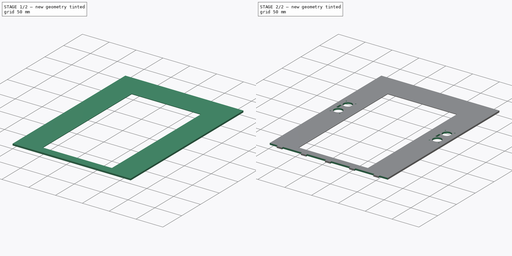
[diagram: build sequence overview — one tinted view per stage of 2, left to right]
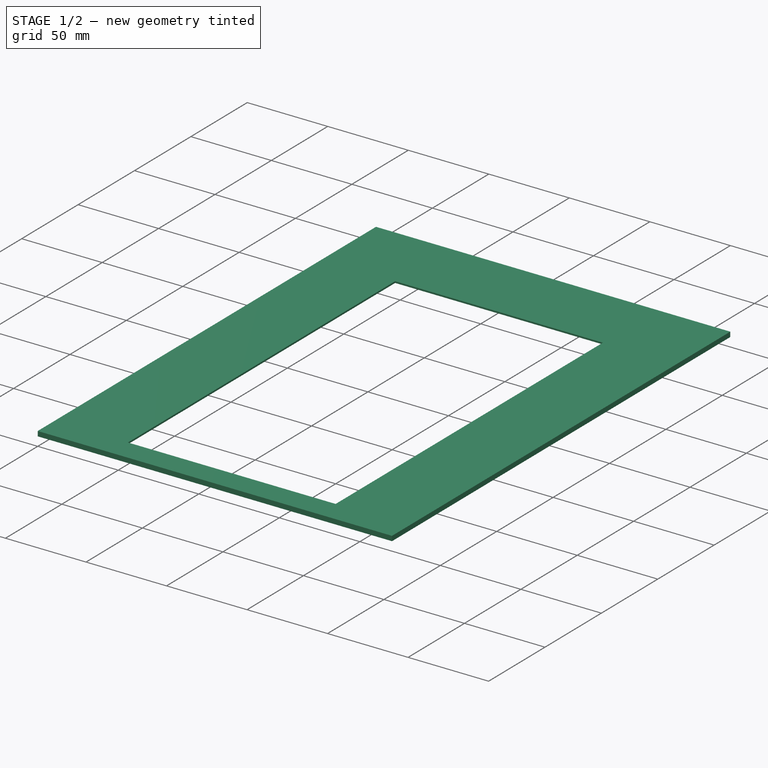
[diagram: stage 1 of 2 — iso view after this stage's code; geometry added in this stage tinted green]
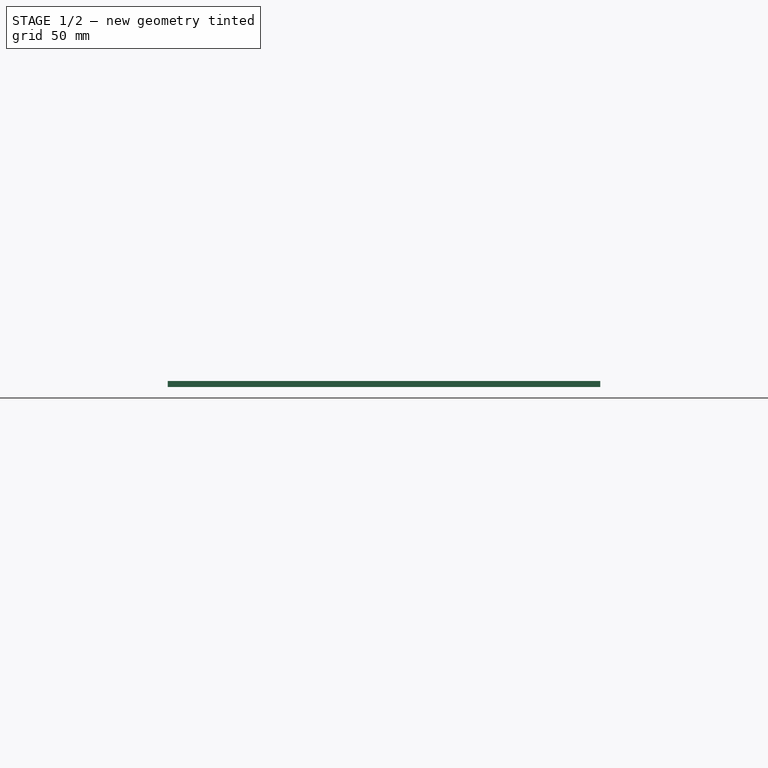
[diagram: stage 1 of 2 — front view after this stage's code; geometry added in this stage tinted green]
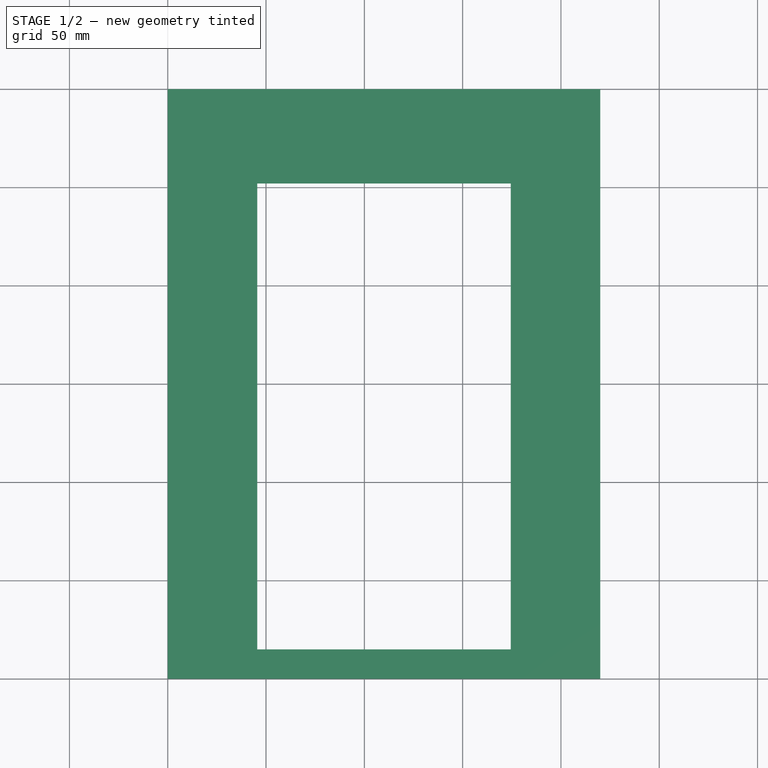
[diagram: stage 1 of 2 — top view after this stage's code; geometry added in this stage tinted green]
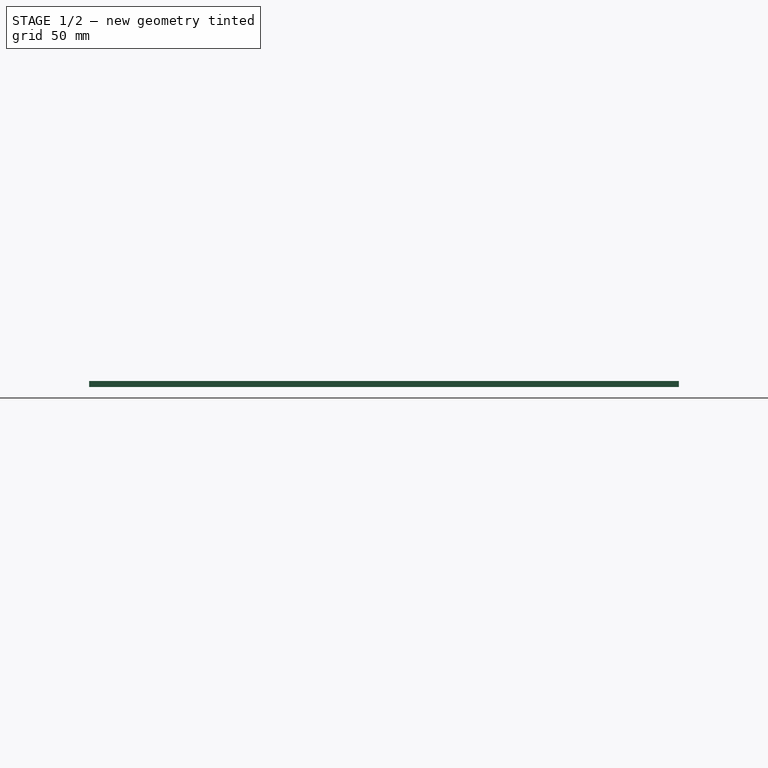
[diagram: stage 1 of 2 — right view after this stage's code; geometry added in this stage tinted green]
FCSTD DOCUMENT  (FreeCAD 0.19R24366 (Git))
Label: mdo-backup
License: All rights reserved
LicenseURL: http://en.wikipedia.org/wiki/All_rights_reserved
objects: Sketcher::SketchObject×4, PartDesign::Pocket×3, PartDesign::Pad×1, PartDesign::Body×1
note: 13 computed .brp shape members not serialized (recipe doc carries the construction recipe); baked Part::Feature solids carry a one-line shape summary decoded from their .brp

FEATURE [Sketcher::SketchObject] Sketch
  FullyConstrained = true
  MapMode = 5
  Support = -> [XY_Plane]
  sketch-geometry (8):
    g0: LineSegment StartX=0 StartY=0 StartZ=0 EndX=220 EndY=0 EndZ=0
    g1: LineSegment StartX=220 StartY=0 StartZ=0 EndX=220 EndY=300 EndZ=0
    g2: LineSegment StartX=220 StartY=300 StartZ=0 EndX=0 EndY=300 EndZ=0
    g3: LineSegment StartX=0 StartY=300 StartZ=0 EndX=0 EndY=0 EndZ=0
    g4: LineSegment StartX=45.5 StartY=252 StartZ=0 EndX=174.5 EndY=252 EndZ=0
    g5: LineSegment StartX=174.5 StartY=252 StartZ=0 EndX=174.5 EndY=15 EndZ=0
    g6: LineSegment StartX=174.5 StartY=15 StartZ=0 EndX=45.5 EndY=15 EndZ=0
    g7: LineSegment StartX=45.5 StartY=15 StartZ=0 EndX=45.5 EndY=252 EndZ=0
  constraints (23):
    c: Coincident(g0,g1)
    c: Coincident(g1,g2)
    c: Coincident(g2,g3)
    c: Coincident(g3,g0)
    c: Horizontal(g0)
    c: Horizontal(g2)
    c: Vertical(g1)
    c: Vertical(g3)
    c: Coincident(g0,g-1)
    c: DistanceX(g0,g0) = 220
    c: DistanceY(g3,g3) = 300
    c: Coincident(g4,g5)
    c: Coincident(g5,g6)
    c: Coincident(g6,g7)
    c: Coincident(g7,g4)
    c: Horizontal(g4)
    c: Horizontal(g6)
    c: Vertical(g5)
    c: Vertical(g7)
    c: DistanceY(g0,g5) = 15
    c: DistanceY(g5,g5) = 237
    c: DistanceX(g6,g6) = 129
    c: DistanceX(g2,g4) = 45.5
FEATURE [PartDesign::Pad] Pad
  Direction = (1,1,1)
  Length = 3
  Length2 = 100
  Profile = -> Sketch
  Type = 0
FEATURE [Sketcher::SketchObject] Sketch001
  FullyConstrained = true
  MapMode = 5
  Placement = pos=(0,0,0) rot=(1,0,0;3.14159rad)
  Support = -> [Pad]
  sketch-geometry (8):
    g0: LineSegment StartX=41.5 StartY=-12 StartZ=0 EndX=184.5 EndY=-12 EndZ=0
    g1: LineSegment StartX=184.5 StartY=-12 StartZ=0 EndX=184.5 EndY=-257 EndZ=0
    g2: LineSegment StartX=184.5 StartY=-257 StartZ=0 EndX=41.5 EndY=-257 EndZ=0
    g3: LineSegment StartX=41.5 StartY=-257 StartZ=0 EndX=41.5 EndY=-12 EndZ=0
    g4: LineSegment StartX=45.5 StartY=-15 StartZ=0 EndX=174.5 EndY=-15 EndZ=0
    g5: LineSegment StartX=174.5 StartY=-15 StartZ=0 EndX=174.5 EndY=-252 EndZ=0
    g6: LineSegment StartX=174.5 StartY=-252 StartZ=0 EndX=45.5 EndY=-252 EndZ=0
    g7: LineSegment StartX=45.5 StartY=-252 StartZ=0 EndX=45.5 EndY=-15 EndZ=0
  constraints (24):
    c: Coincident(g0,g1)
    c: Coincident(g1,g2)
    c: Coincident(g2,g3)
    c: Coincident(g3,g0)
    c: Horizontal(g0)
    c: Horizontal(g2)
    c: Vertical(g1)
    c: Vertical(g3)
    c: Coincident(g4,g5)
    c: Coincident(g5,g6)
    c: Coincident(g6,g7)
    c: Coincident(g7,g4)
    c: Horizontal(g4)
    c: Horizontal(g6)
    c: Vertical(g5)
    c: Vertical(g7)
    c: DistanceX(g4,g4) = 129
    c: DistanceY(g4,g-1) = 15
    c: DistanceY(g5,g5) = 237
    c: DistanceX(g-1,g4) = 45.5
    c: DistanceY(g1,g5) = 5
    c: DistanceY(g4,g0) = 3
    c: DistanceX(g5,g1) = 10
    c: DistanceX(g2,g6) = 4
FEATURE [PartDesign::Pocket] Pocket
  BaseFeature = -> Pad
  Length = 2
  Length2 = 100
  Profile = -> Sketch001
  Type = 0
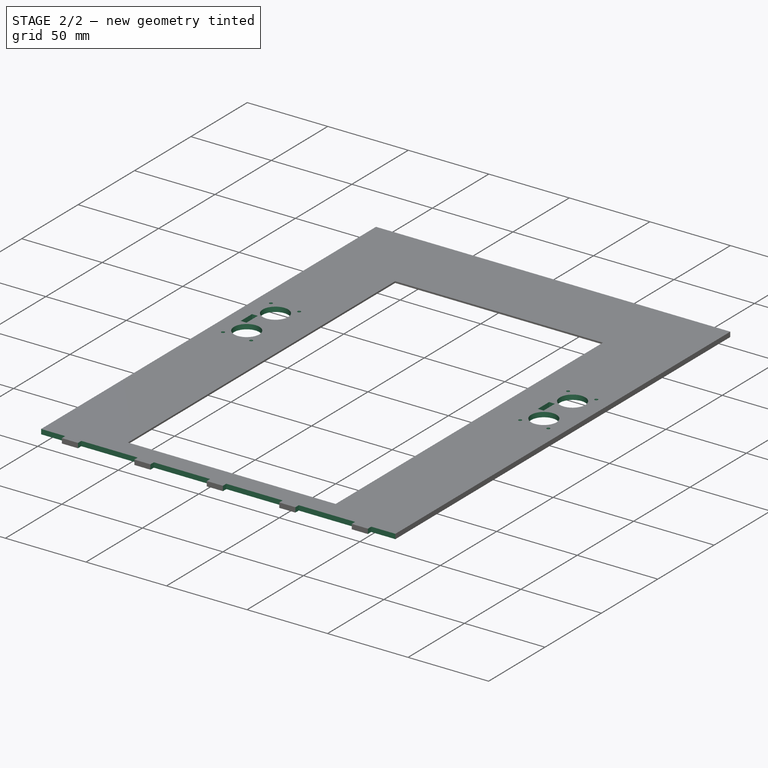
[diagram: stage 2 of 2 — iso view after this stage's code; geometry added in this stage tinted green]
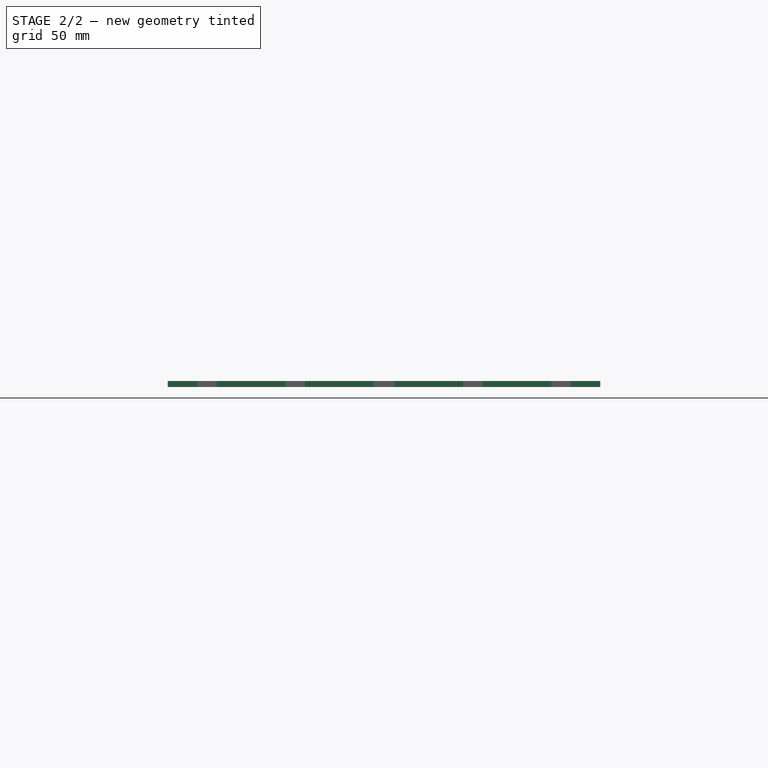
[diagram: stage 2 of 2 — front view after this stage's code; geometry added in this stage tinted green]
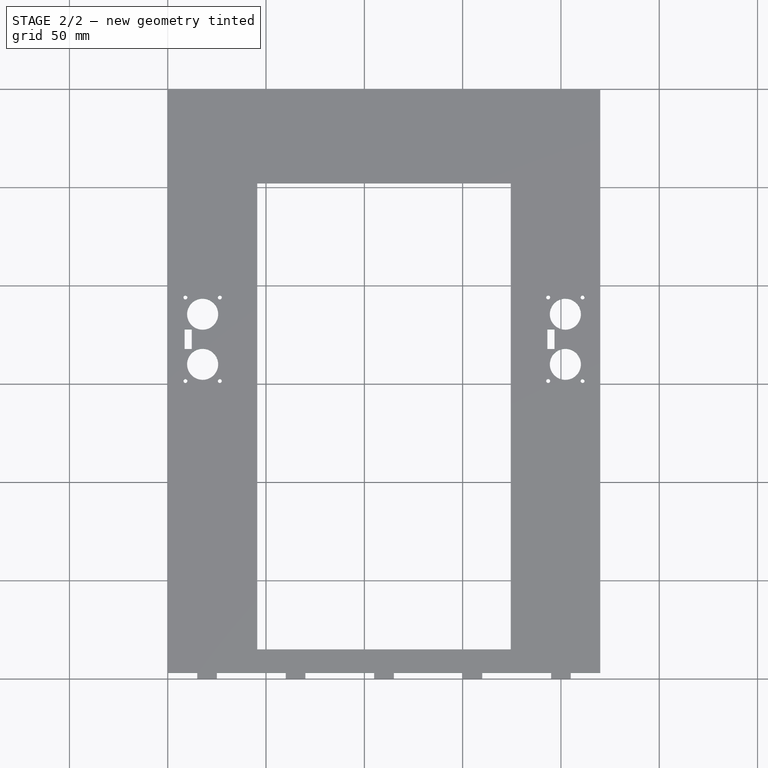
[diagram: stage 2 of 2 — top view after this stage's code; geometry added in this stage tinted green]
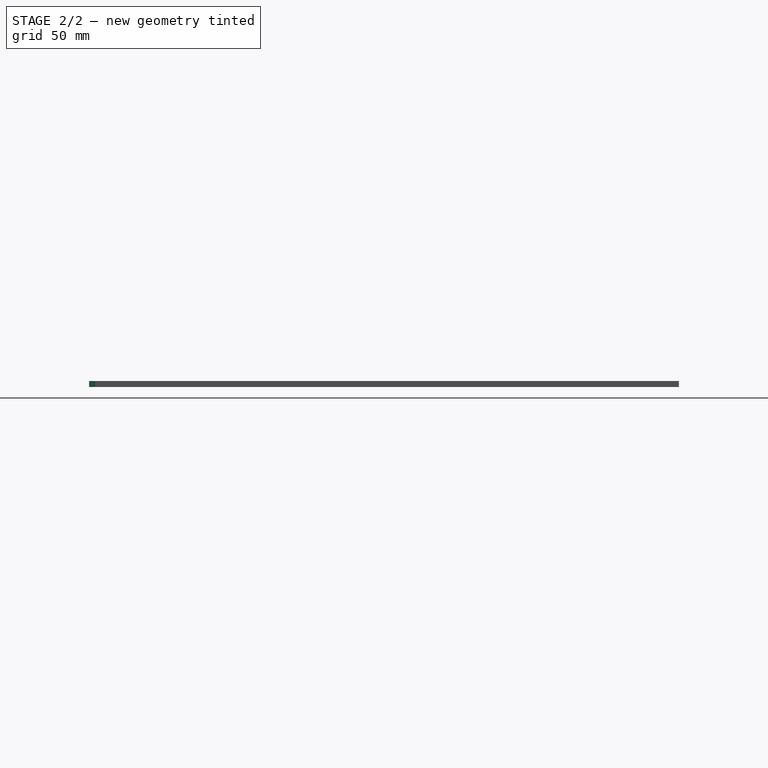
[diagram: stage 2 of 2 — right view after this stage's code; geometry added in this stage tinted green]
FEATURE [Sketcher::SketchObject] Sketch002
  FullyConstrained = false
  MapMode = 5
  Placement = pos=(0,0,3) rot=(0,0,1;0rad)
  Support = -> [Pocket]
  sketch-geometry (59):
    g0: Circle CenterX=17.75 CenterY=185.5 CenterZ=0 NormalX=0 NormalY=0 NormalZ=1 AngleXU=0 Radius=7.9
    g1: Circle CenterX=17.75 CenterY=160 CenterZ=0 NormalX=0 NormalY=0 NormalZ=1 AngleXU=0 Radius=7.9
    g2: Circle CenterX=9 CenterY=151.5 CenterZ=0 NormalX=0 NormalY=0 NormalZ=1 AngleXU=0 Radius=1
    g3: Circle CenterX=26.5 CenterY=151.5 CenterZ=0 NormalX=0 NormalY=0 NormalZ=1 AngleXU=0 Radius=1
    g4: Circle CenterX=9 CenterY=194 CenterZ=0 NormalX=0 NormalY=0 NormalZ=1 AngleXU=0 Radius=1
    g5: Circle CenterX=26.5 CenterY=194 CenterZ=0 NormalX=0 NormalY=0 NormalZ=1 AngleXU=0 Radius=1
    g6: LineSegment StartX=7.5 StartY=195.5 StartZ=0 EndX=28 EndY=195.5 EndZ=0
    g7: LineSegment StartX=28 StartY=195.5 StartZ=0 EndX=28 EndY=150 EndZ=0
    g8: LineSegment StartX=28 StartY=150 StartZ=0 EndX=7.5 EndY=150 EndZ=0
    g9: LineSegment StartX=7.5 StartY=150 StartZ=0 EndX=7.5 EndY=195.5 EndZ=0
    g10: LineSegment StartX=8.6 StartY=177.75 StartZ=0 EndX=12.2 EndY=177.75 EndZ=0
    g11: LineSegment StartX=12.2 StartY=177.75 StartZ=0 EndX=12.2 EndY=167.75 EndZ=0
    g12: LineSegment StartX=12.2 StartY=167.75 StartZ=0 EndX=8.6 EndY=167.75 EndZ=0
    g13: LineSegment StartX=8.6 StartY=167.75 StartZ=0 EndX=8.6 EndY=177.75 EndZ=0
    g14: Circle CenterX=202.25 CenterY=185.5 CenterZ=0 NormalX=0 NormalY=0 NormalZ=1 AngleXU=0 Radius=7.9
    g15: Circle CenterX=202.25 CenterY=160 CenterZ=0 NormalX=0 NormalY=0 NormalZ=1 AngleXU=0 Radius=7.9
    g16: Circle CenterX=193.5 CenterY=151.5 CenterZ=0 NormalX=0 NormalY=0 NormalZ=1 AngleXU=0 Radius=1
    g17: Circle CenterX=211 CenterY=151.5 CenterZ=0 NormalX=0 NormalY=0 NormalZ=1 AngleXU=0 Radius=1
    g18: Circle CenterX=193.5 CenterY=194 CenterZ=0 NormalX=0 NormalY=0 NormalZ=1 AngleXU=0 Radius=1
    g19: Circle CenterX=211 CenterY=194 CenterZ=0 NormalX=0 NormalY=0 NormalZ=1 AngleXU=0 Radius=1
    g20: LineSegment StartX=192 StartY=195.5 StartZ=0 EndX=212.5 EndY=195.5 EndZ=0
    g21: LineSegment StartX=212.5 StartY=195.5 StartZ=0 EndX=212.5 EndY=150 EndZ=0
    g22: LineSegment StartX=212.5 StartY=150 StartZ=0 EndX=192 EndY=150 EndZ=0
    g23: LineSegment StartX=192 StartY=150 StartZ=0 EndX=192 EndY=195.5 EndZ=0
    g24: LineSegment StartX=193.1 StartY=177.75 StartZ=0 EndX=196.7 EndY=177.75 EndZ=0
    g25: LineSegment StartX=196.7 StartY=177.75 StartZ=0 EndX=196.7 EndY=167.75 EndZ=0
    g26: LineSegment StartX=196.7 StartY=167.75 StartZ=0 EndX=193.1 EndY=167.75 EndZ=0
    g27: LineSegment StartX=193.1 StartY=167.75 StartZ=0 EndX=193.1 EndY=177.75 EndZ=0
    g28: LineSegment StartX=15 StartY=37.057 StartZ=0 EndX=25 EndY=37.057 EndZ=0
    g29: LineSegment StartX=25 StartY=37.057 StartZ=0 EndX=25 EndY=34.057 EndZ=0
    g30: LineSegment StartX=25 StartY=34.057 StartZ=0 EndX=15 EndY=34.057 EndZ=0
    g31: LineSegment StartX=15 StartY=34.057 StartZ=0 EndX=15 EndY=37.057 EndZ=0
    g32: LineSegment StartX=25 StartY=3 StartZ=0 EndX=60 EndY=3 EndZ=0
    g33: LineSegment StartX=60 StartY=3 StartZ=0 EndX=60 EndY=0 EndZ=0
    g34: LineSegment StartX=60 StartY=0 StartZ=0 EndX=25 EndY=0 EndZ=0
    g35: LineSegment StartX=25 StartY=0 StartZ=0 EndX=25 EndY=3 EndZ=0
    g36: LineSegment StartX=70 StartY=3 StartZ=0 EndX=105 EndY=3 EndZ=0
    g37: LineSegment StartX=105 StartY=3 StartZ=0 EndX=105 EndY=0 EndZ=0
    g38: LineSegment StartX=105 StartY=0 StartZ=0 EndX=70 EndY=0 EndZ=0
    g39: LineSegment StartX=70 StartY=0 StartZ=0 EndX=70 EndY=3 EndZ=0
    g40: LineSegment StartX=25 StartY=3 StartZ=0 EndX=70 EndY=3 EndZ=0
    g41: LineSegment StartX=115 StartY=3 StartZ=0 EndX=150 EndY=3 EndZ=0
    g42: LineSegment StartX=150 StartY=3 StartZ=0 EndX=150 EndY=0 EndZ=0
    g43: LineSegment StartX=150 StartY=0 StartZ=0 EndX=115 EndY=0 EndZ=0
    g44: LineSegment StartX=115 StartY=0 StartZ=0 EndX=115 EndY=3 EndZ=0
    g45: LineSegment StartX=70 StartY=3 StartZ=0 EndX=115 EndY=3 EndZ=0
    g46: LineSegment StartX=160 StartY=3 StartZ=0 EndX=195 EndY=3 EndZ=0
    g47: LineSegment StartX=195 StartY=3 StartZ=0 EndX=195 EndY=0 EndZ=0
    g48: LineSegment StartX=195 StartY=0 StartZ=0 EndX=160 EndY=0 EndZ=0
    g49: LineSegment StartX=160 StartY=0 StartZ=0 EndX=160 EndY=3 EndZ=0
    g50: LineSegment StartX=115 StartY=3 StartZ=0 EndX=160 EndY=3 EndZ=0
    g51: LineSegment StartX=0 StartY=3 StartZ=0 EndX=15 EndY=3 EndZ=0
    g52: LineSegment StartX=15 StartY=3 StartZ=0 EndX=15 EndY=0 EndZ=0
    g53: LineSegment StartX=15 StartY=0 StartZ=0 EndX=0 EndY=0 EndZ=0
    g54: LineSegment StartX=0 StartY=0 StartZ=0 EndX=0 EndY=3 EndZ=0
    g55: LineSegment StartX=205 StartY=3 StartZ=0 EndX=220 EndY=3 EndZ=0
    g56: LineSegment StartX=220 StartY=3 StartZ=0 EndX=220 EndY=0 EndZ=0
    g57: LineSegment StartX=220 StartY=0 StartZ=0 EndX=205 EndY=0 EndZ=0
    g58: LineSegment StartX=205 StartY=0 StartZ=0 EndX=205 EndY=3 EndZ=0
  constraints (173):
    c: Diameter(g0) = 15.8
    c: Diameter(g1) = 15.8
    c: DistanceX(g1,g0) = 0
    c: DistanceX(g-1,g1) = 17.75
    c: DistanceY(g1,g0) = 25.5
    c: DistanceY(g2,g1) = 8.5
    c: Diameter(g2) = 2
    c: DistanceX(g2,g1) = 8.75
    c: Equal(g2,g3) = 2
    c: DistanceX(g2,g3) = 17.5
    c: Equal(g2,g4) = 2
    c: DistanceY(g0,g5) = 8.5
    c: Diameter(g5) = 2
    c: DistanceX(g3,g5) = 0
    c: DistanceY(g5,g4) = 0
    c: DistanceX(g4,g2) = 0
    c: DistanceY(g3,g2) = 0
    c: Coincident(g6,g7)
    c: Coincident(g7,g8)
    c: Coincident(g8,g9)
    c: Coincident(g9,g6)
    c: Horizontal(g6)
    c: Horizontal(g8)
    c: Vertical(g7)
    c: Vertical(g9)
    c: DistanceY(g7,g7) = 45.5
    c: DistanceX(g6,g6) = 20.5
    c: DistanceX(g8,g2) = 1.5
    c: DistanceY(g8,g2) = 1.5
    c: DistanceY(g-1,g8) = 150
    c: Coincident(g10,g11)
    c: Coincident(g11,g12)
    c: Coincident(g12,g13)
    c: Coincident(g13,g10)
    c: Horizontal(g10)
    c: Horizontal(g12)
    c: Vertical(g11)
    c: Vertical(g13)
    c: DistanceY(g11,g11) = 10
    c: DistanceX(g10,g10) = 3.6
    c: DistanceX(g8,g12) = 1.1
    c: DistanceY(g8,g12) = 17.75
    c: Equal(g0,g14) = 15.8
    c: Equal(g1,g15) = 15.8
    c: DistanceX(g15,g14) = 0
    c: DistanceY(g15,g14) = 25.5
    c: DistanceY(g16,g15) = 8.5
    c: Equal(g2,g16) = 2
    c: DistanceX(g16,g15) = 8.75
    c: Equal(g16,g17) = 2
    c: DistanceX(g16,g17) = 17.5
    c: Equal(g16,g18) = 2
    c: DistanceY(g14,g19) = 8.5
    c: Equal(g5,g19) = 2
    c: DistanceX(g17,g19) = 0
    c: DistanceY(g19,g18) = 0
    c: DistanceX(g18,g16) = 0
    c: DistanceY(g17,g16) = 0
    c: Coincident(g20,g21)
    c: Coincident(g21,g22)
    c: Coincident(g22,g23)
    c: Coincident(g23,g20)
    c: Horizontal(g20)
    c: Horizontal(g22)
    c: Vertical(g21)
    c: Vertical(g23)
    c: Equal(g7,g21) = 45.5
    c: Equal(g6,g20) = 20.5
    c: DistanceX(g22,g16) = 1.5
    c: DistanceY(g22,g16) = 1.5
    c: Coincident(g24,g25)
    c: Coincident(g25,g26)
    c: Coincident(g26,g27)
    c: Coincident(g27,g24)
    c: Horizontal(g24)
    c: Horizontal(g26)
    c: Vertical(g25)
    c: Vertical(g27)
    c: Equal(g11,g25) = 10
    c: Equal(g10,g24) = 3.6
    c: DistanceX(g22,g26) = 1.1
    c: DistanceY(g22,g26) = 17.75
    c: DistanceX(g0,g14) = 184.5
    c: DistanceY(g14,g0) = 0
    c: Coincident(g28,g29)
    c: Coincident(g29,g30)
    c: Coincident(g30,g31)
    c: Coincident(g31,g28)
    c: Horizontal(g28)
    c: Horizontal(g30)
    c: Vertical(g29)
    c: Vertical(g31)
    c: DistanceY(g29,g29) = 3
    c: DistanceX(g28,g28) = 10
    c: DistanceX(g-1,g30) = 15
    c: Coincident(g32,g33)
    c: Coincident(g33,g34)
    c: Coincident(g34,g35)
    c: Coincident(g35,g32)
    c: Horizontal(g32)
    c: Horizontal(g34)
    c: Vertical(g33)
    c: Vertical(g35)
    c: DistanceY(g33,g33) = 3
    c: DistanceX(g32,g32) = 35
    c: DistanceX(g-1,g34) = 25
    c: DistanceY(g-1,g34) = 0
    c: Coincident(g36,g37)
    c: Coincident(g37,g38)
    c: Coincident(g38,g39)
    c: Coincident(g39,g36)
    c: Horizontal(g36)
    c: Horizontal(g38)
    c: Vertical(g37)
    c: Vertical(g39)
    c: Equal(g33,g37) = 3
    c: Equal(g32,g36) = 35
    c: Coincident(g32,g40)
    c: Coincident(g36,g40)
    c: Distance(g40) = 45
    c: Angle(g40) = 0
    c: Coincident(g41,g42)
    c: Coincident(g42,g43)
    c: Coincident(g43,g44)
    c: Coincident(g44,g41)
    c: Horizontal(g41)
    c: Horizontal(g43)
    c: Vertical(g42)
    c: Vertical(g44)
    c: Equal(g33,g42) = 3
    c: Equal(g32,g41) = 35
    c: Coincident(g36,g45)
    c: Coincident(g41,g45)
    c: Equal(g40,g45)
    c: Parallel(g45,g40)
    c: Coincident(g46,g47)
    c: Coincident(g47,g48)
    c: Coincident(g48,g49)
    c: Coincident(g49,g46)
    c: Horizontal(g46)
    c: Horizontal(g48)
    c: Vertical(g47)
    c: Vertical(g49)
    c: Equal(g33,g47) = 3
    c: Equal(g32,g46) = 35
    c: Coincident(g41,g50)
    c: Coincident(g46,g50)
    c: Equal(g40,g50)
    c: Parallel(g50,g40)
    c: Coincident(g51,g52)
    c: Coincident(g52,g53)
    c: Coincident(g53,g54)
    c: Coincident(g54,g51)
    c: Horizontal(g51)
    c: Horizontal(g53)
    c: Vertical(g52)
    c: Vertical(g54)
    c: DistanceY(g52,g52) = 3
    c: DistanceX(g51,g51) = 15
    c: DistanceX(g-1,g53) = 0
    c: DistanceY(g-1,g53) = 0
    c: Coincident(g55,g56)
    c: Coincident(g56,g57)
    c: Coincident(g57,g58)
    c: Coincident(g58,g55)
    c: Horizontal(g55)
    c: Horizontal(g57)
    c: Vertical(g56)
    c: Vertical(g58)
    c: Equal(g52,g56) = 3
    c: Equal(g51,g55) = 15
    c: DistanceY(g47,g57) = 0
    c: DistanceX(g53,g56) = 220
FEATURE [PartDesign::Pocket] Pocket001
  BaseFeature = -> Pocket
  Length = 5
  Length2 = 100
  Profile = -> Sketch002
  Type = 1
FEATURE [Sketcher::SketchObject] Sketch003
  FullyConstrained = true
  MapMode = 5
  Placement = pos=(15,0,0) rot=(0.57735,-0.57735,-0.57735;2.0944rad)
  Support = -> [Pocket001]
  sketch-geometry (9):
    g0: Circle CenterX=110 CenterY=272 CenterZ=0 NormalX=0 NormalY=0 NormalZ=1 AngleXU=0 Radius=3.6
    g1: Circle CenterX=110 CenterY=261.5 CenterZ=0 NormalX=0 NormalY=0 NormalZ=1 AngleXU=0 Radius=1
    g2: Circle CenterX=110 CenterY=282.5 CenterZ=0 NormalX=0 NormalY=0 NormalZ=1 AngleXU=0 Radius=1
    g3: Circle CenterX=122.5 CenterY=261.5 CenterZ=0 NormalX=0 NormalY=0 NormalZ=1 AngleXU=0 Radius=1
    g4: Circle CenterX=122.5 CenterY=282.5 CenterZ=0 NormalX=0 NormalY=0 NormalZ=1 AngleXU=0 Radius=1
    g5: LineSegment StartX=100.5 StartY=284.5 StartZ=0 EndX=124.5 EndY=284.5 EndZ=0
    g6: LineSegment StartX=124.5 StartY=284.5 StartZ=0 EndX=124.5 EndY=259.5 EndZ=0
    g7: LineSegment StartX=124.5 StartY=259.5 StartZ=0 EndX=100.5 EndY=259.5 EndZ=0
    g8: LineSegment StartX=100.5 StartY=259.5 StartZ=0 EndX=100.5 EndY=284.5 EndZ=0
  constraints (27):
    c: Diameter(g0) = 7.2
    c: Diameter(g1) = 2
    c: DistanceX(g-1,g0) = 110
    c: DistanceY(g-1,g0) = 272
    c: DistanceX(g1,g0) = 0
    c: DistanceY(g1,g0) = 10.5
    c: Equal(g1,g2) = 2
    c: DistanceY(g0,g2) = 10.5
    c: DistanceX(g2,g0) = 0
    c: Equal(g1,g3) = 2
    c: Equal(g3,g4) = 2
    c: DistanceY(g4,g2) = 0
    c: DistanceY(g3,g1) = 0
    c: DistanceX(g2,g4) = 12.5
    c: DistanceX(g1,g3) = 12.5
    c: Coincident(g5,g6)
    c: Coincident(g6,g7)
    c: Coincident(g7,g8)
    c: Coincident(g8,g5)
    c: Horizontal(g5)
    c: Horizontal(g7)
    c: Vertical(g6)
    c: Vertical(g8)
    c: DistanceX(g5,g5) = 24
    c: DistanceY(g6,g6) = 25
    c: DistanceY(g7,g0) = 12.5
    c: DistanceX(g7,g0) = 9.5
FEATURE [PartDesign::Pocket] Pocket002
  BaseFeature = -> Pocket001
  Length = 5
  Length2 = 100
  Profile = -> Sketch003
  Type = 0
FEATURE [PartDesign::Body] Body
  Group = -> [Sketch,Pad,Sketch001,Pocket,Sketch002,Pocket001,Sketch003,Pocket002]
  Origin = -> Origin
  Tip = -> Pocket002
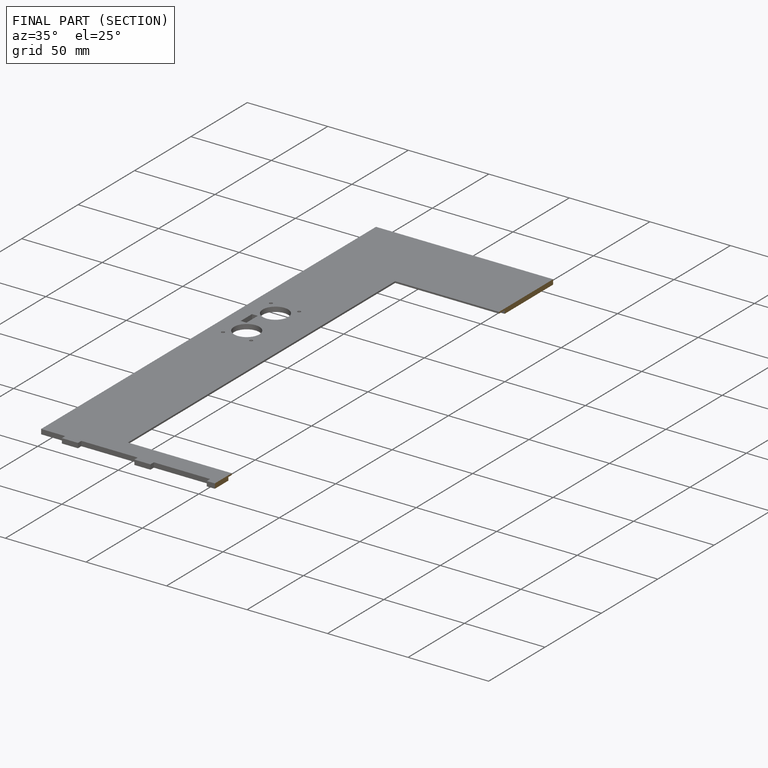
[diagram: finished part — half-section view (interior)]
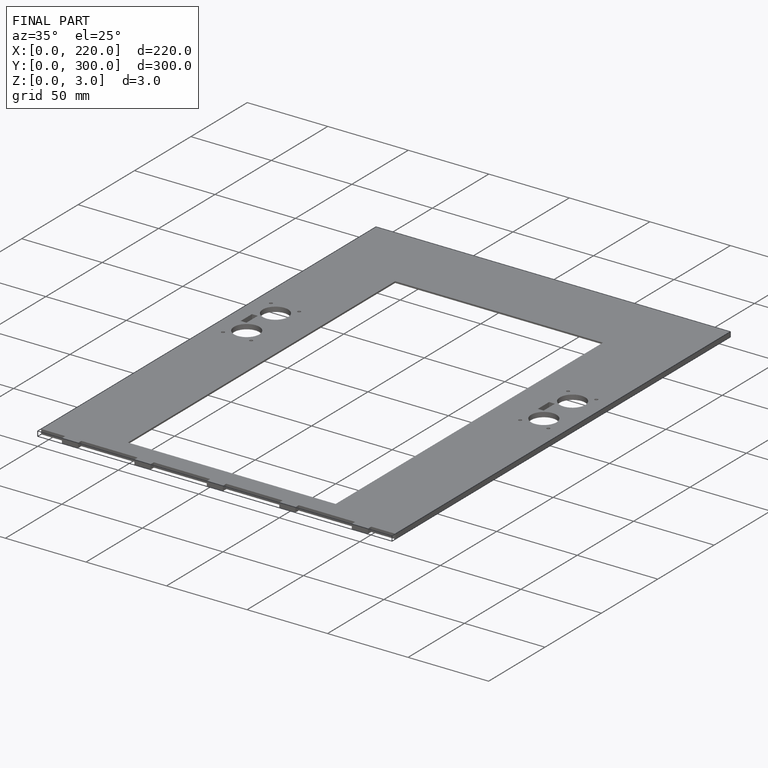
[diagram: finished part — iso view with bounding-box wireframe]
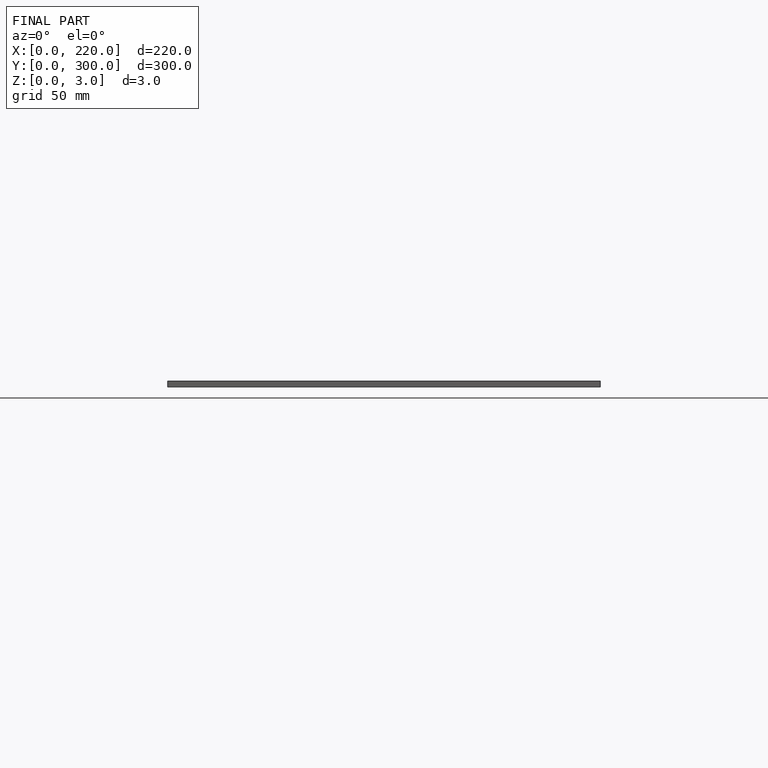
[diagram: finished part — front view with bounding-box wireframe]
